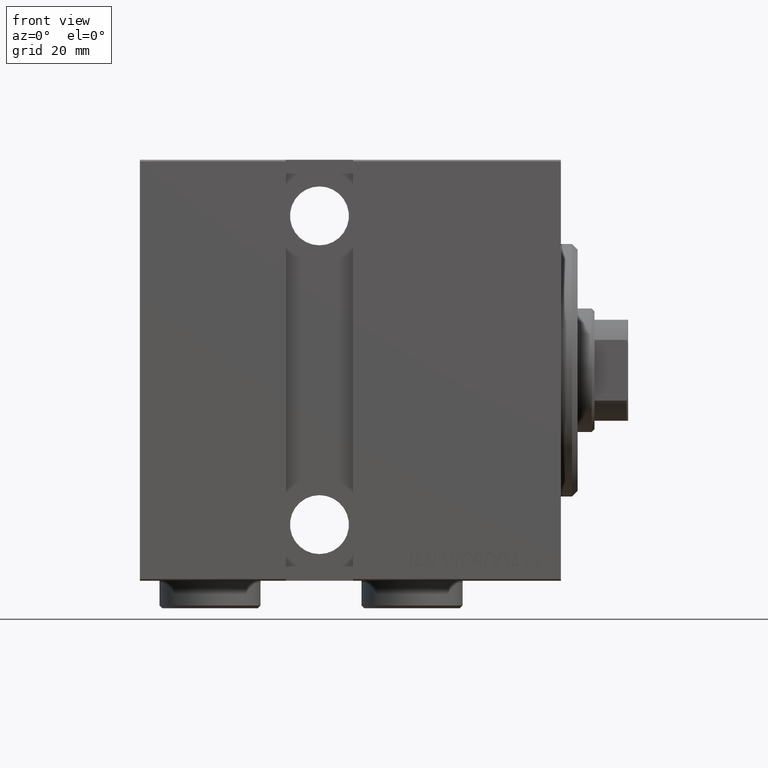
[diagram: clean part render]
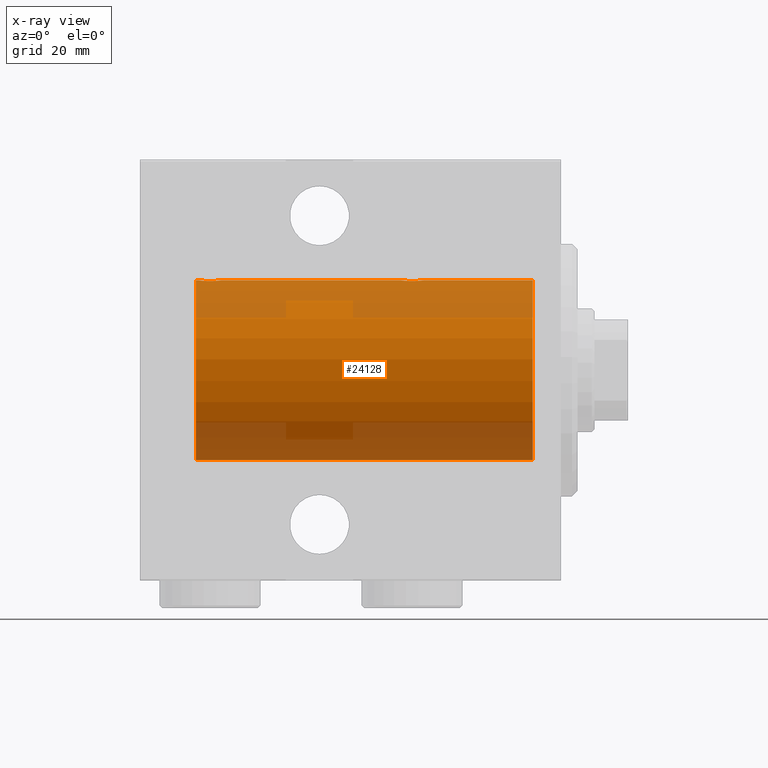
[diagram: x-ray — body ghosted, one internal face saturated and labeled with its STEP entity id]
A machine part, front view, then the same camera in x-ray: the body is ghosted and one INTERNAL B-rep face — a face not visible from any outside direction — is saturated and labeled: STEP entity #24128.
In plain terms, the highlighted cylindrical surface (partial cylindrical patch) has radius 16 mm, axis along (1, 0, -0).
Its self-contained STEP definition (entity closure, byte-faithful):
#382 = DIRECTION ( 'NONE',  ( -1.000000000000000000, -0.000000000000000000, -0.000000000000000000 ) ) ;
#606 = LINE ( 'NONE', #40849, #21397 ) ;
#1157 = CARTESIAN_POINT ( 'NONE',  ( 25.98086902289887234, 1.935876924222074358, 15.88247600692093187 ) ) ;
#1593 = CARTESIAN_POINT ( 'NONE',  ( 27.50659181559580446, 1.747750603376297729, 15.90457341008072056 ) ) ;
#1829 = CARTESIAN_POINT ( 'NONE',  ( 61.85613031966985886, 1.898058445420874651, 15.88709929148890687 ) ) ;
#2051 = CARTESIAN_POINT ( 'NONE',  ( 64.49999999999998579, 3.415560487804343463E-15, 16.00000000000000000 ) ) ;
#2203 = ORIENTED_EDGE ( 'NONE', *, *, #26981, .T. ) ;
#3200 = FACE_OUTER_BOUND ( 'NONE', #31350, .T. ) ;
#3416 = CYLINDRICAL_SURFACE ( 'NONE', #31653, 16.00000000000000000 ) ;
#4492 = CARTESIAN_POINT ( 'NONE',  ( 28.49999999999999645, -1.207828523974853969E-15, 16.00000000000000000 ) ) ;
#4604 = EDGE_CURVE ( 'NONE', #28850, #25302, #606, .T. ) ;
#4939 = CARTESIAN_POINT ( 'NONE',  ( 64.29713414748218270, 0.8874076679346717400, 15.97583181162460697 ) ) ;
#5162 = CARTESIAN_POINT ( 'NONE',  ( 64.00610712468245822, 1.322357532253809476, 15.94553003295877680 ) ) ;
#5378 = CARTESIAN_POINT ( 'NONE',  ( 60.51309075167873885, 0.2632563459770802528, 15.99834873924246104 ) ) ;
#5596 = CARTESIAN_POINT ( 'NONE',  ( 62.37014691649500264, 2.000047931387129552, 15.87450182760079898 ) ) ;
#5641 = B_SPLINE_CURVE_WITH_KNOTS ( 'NONE', 3,
 ( #4492, #42709, #11383, #32285, #18294, #12276, #38284, #8709, #25173, #18072, #1593, #38507, #15386, #31621, #8267, #1157, #21842, #28719, #28941, #42268, #11829, #38947, #8485, #22057, #39596, #39379, #36708, #23153, #36913, #12927 ),
 .UNSPECIFIED., .F., .F.,
 ( 4, 2, 2, 2, 2, 2, 2, 2, 2, 2, 2, 2, 2, 2, 4 ),
 ( 1.745049934674283425E-18, 0.0003911894522871204737, 0.0007823789045742392126, 0.001173568356861357789, 0.001564757809148476691, 0.002347136713722706037, 0.003129515618296936034, 0.003520705070584051466, 0.003911894522871166464, 0.004303083975158282330, 0.004694273427445396461, 0.005085462879732512327, 0.005476652332019627326, 0.005867841784306743191, 0.006259031236593858190 ),
 .UNSPECIFIED. ) ;
#5719 = DIRECTION ( 'NONE',  ( -1.000000000000000000, 0.000000000000000000, 0.000000000000000000 ) ) ;
#5853 = CARTESIAN_POINT ( 'NONE',  ( 65.00000000000000000, 0.000000000000000000, 16.00000000000000000 ) ) ;
#6196 = VERTEX_POINT ( 'NONE', #9571 ) ;
#8233 = EDGE_CURVE ( 'NONE', #14792, #35849, #35295, .T. ) ;
#8267 = CARTESIAN_POINT ( 'NONE',  ( 26.23748416992101085, 1.987008272775788731, 15.87616016863256618 ) ) ;
#8485 = CARTESIAN_POINT ( 'NONE',  ( 24.90998471899876066, 1.220169175415113827, 15.95377581882983442 ) ) ;
#8593 = ORIENTED_EDGE ( 'NONE', *, *, #14199, .T. ) ;
#8709 = CARTESIAN_POINT ( 'NONE',  ( 28.09051504852099512, 1.219564485341767091, 15.95382484008323409 ) ) ;
#8728 = CARTESIAN_POINT ( 'NONE',  ( 60.56430947073870641, 0.5198215460038694280, 15.99206840425679310 ) ) ;
#9118 = DIRECTION ( 'NONE',  ( -1.000000000000000000, -0.000000000000000000, -0.000000000000000000 ) ) ;
#9571 = CARTESIAN_POINT ( 'NONE',  ( 64.49999999999998579, 3.415560487804343463E-15, 16.00000000000000000 ) ) ;
#11241 = CARTESIAN_POINT ( 'NONE',  ( 4.999999999999997335, 0.000000000000000000, 16.00000000000000000 ) ) ;
#11383 = CARTESIAN_POINT ( 'NONE',  ( 28.48700524008413382, 0.2623312429553315561, 15.99836091803360105 ) ) ;
#11550 = EDGE_CURVE ( 'NONE', #22007, #28850, #30180, .T. ) ;
#11829 = CARTESIAN_POINT ( 'NONE',  ( 25.17924175171067702, 1.507649250492130388, 15.92908549642226745 ) ) ;
#12064 = CARTESIAN_POINT ( 'NONE',  ( 60.76517329325045580, 1.003662148334357296, 15.96885838080210362 ) ) ;
#12276 = CARTESIAN_POINT ( 'NONE',  ( 28.29713414748220046, 0.8874076679346754037, 15.97583181162460697 ) ) ;
#12293 = CARTESIAN_POINT ( 'NONE',  ( 60.50000000000000711, -2.739595594696790848E-23, 16.00000000000000000 ) ) ;
#12508 = CARTESIAN_POINT ( 'NONE',  ( 61.28032342557722245, 1.590393755195991909, 15.92092783521423272 ) ) ;
#12927 = CARTESIAN_POINT ( 'NONE',  ( 24.50000000000000000, -2.739635037742051899E-23, 16.00000000000000000 ) ) ;
#13667 = CARTESIAN_POINT ( 'NONE',  ( 65.00000000000000000, 0.000000000000000000, 0.000000000000000000 ) ) ;
#13682 = VERTEX_POINT ( 'NONE', #35434 ) ;
#13903 = EDGE_CURVE ( 'NONE', #30354, #13682, #22689, .T. ) ;
#14199 = EDGE_CURVE ( 'NONE', #35849, #25302, #30829, .T. ) ;
#14792 = VERTEX_POINT ( 'NONE', #24074 ) ;
#15140 = CARTESIAN_POINT ( 'NONE',  ( 65.00000000000000000, 0.000000000000000000, 16.00000000000000000 ) ) ;
#15189 = CARTESIAN_POINT ( 'NONE',  ( 64.43611326682059826, 0.5181437283162059204, 15.99211983514074653 ) ) ;
#15386 = CARTESIAN_POINT ( 'NONE',  ( 26.76191462762254858, 1.999903730784154066, 15.87451999516785861 ) ) ;
#15505 = CARTESIAN_POINT ( 'NONE',  ( 65.00000000000000000, 0.000000000000000000, 16.00000000000000000 ) ) ;
#15616 = CARTESIAN_POINT ( 'NONE',  ( 63.50659181559576183, 1.747750603376297951, 15.90457341008072056 ) ) ;
#15923 = AXIS2_PLACEMENT_3D ( 'NONE', #42267, #18728, #29595 ) ;
#15975 = AXIS2_PLACEMENT_3D ( 'NONE', #21966, #5719, #18864 ) ;
#16753 = CARTESIAN_POINT ( 'NONE',  ( 4.999999999999997335, 1.959434878635765131E-15, -16.00000000000000000 ) ) ;
#16999 = DIRECTION ( 'NONE',  ( 0.000000000000000000, 0.000000000000000000, 1.000000000000000000 ) ) ;
#18072 = CARTESIAN_POINT ( 'NONE',  ( 27.72956111739783580, 1.598790766515148620, 15.92099550861380131 ) ) ;
#18294 = CARTESIAN_POINT ( 'NONE',  ( 28.39758870055591444, 0.6452446332038146437, 15.98744362947834574 ) ) ;
#18528 = CARTESIAN_POINT ( 'NONE',  ( 60.99262839687573745, 1.321075116345875378, 15.94564302722883653 ) ) ;
#18728 = DIRECTION ( 'NONE',  ( -1.000000000000000000, 0.000000000000000000, 0.000000000000000000 ) ) ;
#18748 = CARTESIAN_POINT ( 'NONE',  ( 62.76191462762252371, 1.999903730784143630, 15.87451999516785506 ) ) ;
#18864 = DIRECTION ( 'NONE',  ( 0.000000000000000000, 0.000000000000000000, 1.000000000000000000 ) ) ;
#18963 = CARTESIAN_POINT ( 'NONE',  ( 61.61382242942730159, 1.797743958659246966, 15.89876304682111652 ) ) ;
#19658 = ORIENTED_EDGE ( 'NONE', *, *, #4604, .F. ) ;
#20322 = ORIENTED_EDGE ( 'NONE', *, *, #30399, .T. ) ;
#21397 = VECTOR ( 'NONE', #382, 1000.000000000000000 ) ;
#21842 = CARTESIAN_POINT ( 'NONE',  ( 25.85613031966986952, 1.898058445420883311, 15.88709929148890510 ) ) ;
#21966 = CARTESIAN_POINT ( 'NONE',  ( 65.00000000000000000, 0.000000000000000000, 0.000000000000000000 ) ) ;
#22007 = VERTEX_POINT ( 'NONE', #5853 ) ;
#22057 = CARTESIAN_POINT ( 'NONE',  ( 24.76517329325045225, 1.003662148334361959, 15.96885838080210007 ) ) ;
#22076 = CARTESIAN_POINT ( 'NONE',  ( 63.02531756459401890, 1.947280337074155376, 15.88137861827787489 ) ) ;
#22298 = CARTESIAN_POINT ( 'NONE',  ( 60.50000000000001421, 0.1305944228192293111, 16.00000000000000000 ) ) ;
#22689 = LINE ( 'NONE', #15140, #25823 ) ;
#23153 = CARTESIAN_POINT ( 'NONE',  ( 24.51309075167874596, 0.2632563459770819736, 15.99834873924246459 ) ) ;
#24074 = CARTESIAN_POINT ( 'NONE',  ( 24.50000000000000000, -2.739635037742051899E-23, 16.00000000000000000 ) ) ;
#24128 = ADVANCED_FACE ( 'NONE', ( #3200 ), #3416, .F. ) ;
#25173 = CARTESIAN_POINT ( 'NONE',  ( 28.00610712468246177, 1.322357532253821910, 15.94553003295878391 ) ) ;
#25302 = VERTEX_POINT ( 'NONE', #16753 ) ;
#25414 = CARTESIAN_POINT ( 'NONE',  ( 60.90998471899877131, 1.220169175415108942, 15.95377581882983797 ) ) ;
#25511 = DIRECTION ( 'NONE',  ( -1.000000000000000000, -0.000000000000000000, -0.000000000000000000 ) ) ;
#25628 = CARTESIAN_POINT ( 'NONE',  ( 61.17924175171067702, 1.507649250492122839, 15.92908549642226745 ) ) ;
#25823 = VECTOR ( 'NONE', #9118, 1000.000000000000000 ) ;
#25849 = CARTESIAN_POINT ( 'NONE',  ( 60.70250071394959690, 0.8866640484200044581, 15.97587307151817804 ) ) ;
#26131 = DIRECTION ( 'NONE',  ( -1.000000000000000000, -0.000000000000000000, -0.000000000000000000 ) ) ;
#26494 = ORIENTED_EDGE ( 'NONE', *, *, #8233, .T. ) ;
#26772 = LINE ( 'NONE', #42790, #43090 ) ;
#26981 = EDGE_CURVE ( 'NONE', #22007, #6196, #26772, .T. ) ;
#28048 = B_SPLINE_CURVE_WITH_KNOTS ( 'NONE', 3,
 ( #2051, #42727, #36072, #15189, #42285, #4939, #28959, #29397, #5162, #39182, #15616, #22076, #18748, #5596, #42502, #28736, #1829, #18963, #39398, #12508, #25628, #18528, #25414, #12064, #25849, #32303, #8728, #5378, #22298, #12293 ),
 .UNSPECIFIED., .F., .F.,
 ( 4, 2, 2, 2, 2, 2, 2, 2, 2, 2, 2, 2, 2, 2, 4 ),
 ( 3.318791181215196379E-18, 0.0003911894522871183053, 0.0007823789045742333579, 0.001173568356861347814, 0.001564757809148462596, 0.002347136713722691292, 0.003129515618296919988, 0.003520705070584034552, 0.003911894522871149117, 0.004303083975158263248, 0.004694273427445377379, 0.005085462879732491510, 0.005476652332019605642, 0.005867841784306719773, 0.006259031236593833904 ),
 .UNSPECIFIED. ) ;
#28719 = CARTESIAN_POINT ( 'NONE',  ( 25.61382242942729803, 1.797743958659254515, 15.89876304682112007 ) ) ;
#28736 = CARTESIAN_POINT ( 'NONE',  ( 61.98086902289887945, 1.935876924222067252, 15.88247600692093187 ) ) ;
#28850 = VERTEX_POINT ( 'NONE', #30738 ) ;
#28941 = CARTESIAN_POINT ( 'NONE',  ( 25.49688752964961225, 1.735145127817741439, 15.90580292899658410 ) ) ;
#28959 = CARTESIAN_POINT ( 'NONE',  ( 64.23568098498259360, 1.002241074716276881, 15.96895041604535770 ) ) ;
#29397 = CARTESIAN_POINT ( 'NONE',  ( 64.09051504852095604, 1.219564485341761317, 15.95382484008322344 ) ) ;
#29595 = DIRECTION ( 'NONE',  ( 0.000000000000000000, 0.000000000000000000, 1.000000000000000000 ) ) ;
#30180 = CIRCLE ( 'NONE', #15975, 16.00000000000000000 ) ;
#30354 = VERTEX_POINT ( 'NONE', #41421 ) ;
#30399 = EDGE_CURVE ( 'NONE', #6196, #30354, #28048, .T. ) ;
#30738 = CARTESIAN_POINT ( 'NONE',  ( 65.00000000000000000, 1.959434878635765131E-15, -16.00000000000000000 ) ) ;
#30829 = CIRCLE ( 'NONE', #15923, 16.00000000000000000 ) ;
#31350 = EDGE_LOOP ( 'NONE', ( #19658, #41728, #2203, #20322, #34203, #32786, #26494, #8593 ) ) ;
#31621 = CARTESIAN_POINT ( 'NONE',  ( 26.37014691649501685, 2.000047931387139322, 15.87450182760079187 ) ) ;
#31653 = AXIS2_PLACEMENT_3D ( 'NONE', #13667, #37441, #16999 ) ;
#32285 = CARTESIAN_POINT ( 'NONE',  ( 28.43611326682063378, 0.5181437283162068086, 15.99211983514074298 ) ) ;
#32303 = CARTESIAN_POINT ( 'NONE',  ( 60.60216273501104212, 0.6445079780200505537, 15.98747331501412461 ) ) ;
#32786 = ORIENTED_EDGE ( 'NONE', *, *, #41548, .T. ) ;
#34203 = ORIENTED_EDGE ( 'NONE', *, *, #13903, .T. ) ;
#34277 = VECTOR ( 'NONE', #25511, 1000.000000000000000 ) ;
#35295 = LINE ( 'NONE', #15505, #34277 ) ;
#35434 = CARTESIAN_POINT ( 'NONE',  ( 28.49999999999999645, -1.207828523974853969E-15, 16.00000000000000000 ) ) ;
#35849 = VERTEX_POINT ( 'NONE', #11241 ) ;
#36072 = CARTESIAN_POINT ( 'NONE',  ( 64.48700524008410184, 0.2623312429553320002, 15.99836091803360105 ) ) ;
#36708 = CARTESIAN_POINT ( 'NONE',  ( 24.56430947073869930, 0.5198215460038717595, 15.99206840425678955 ) ) ;
#36913 = CARTESIAN_POINT ( 'NONE',  ( 24.49999999999999289, 0.1305944228192297274, 15.99999999999999645 ) ) ;
#37441 = DIRECTION ( 'NONE',  ( -1.000000000000000000, -0.000000000000000000, -0.000000000000000000 ) ) ;
#38284 = CARTESIAN_POINT ( 'NONE',  ( 28.23568098498261492, 1.002241074716280655, 15.96895041604536480 ) ) ;
#38507 = CARTESIAN_POINT ( 'NONE',  ( 27.02531756459403667, 1.947280337074160927, 15.88137861827786779 ) ) ;
#38947 = CARTESIAN_POINT ( 'NONE',  ( 24.99262839687570903, 1.321075116345881595, 15.94564302722883298 ) ) ;
#39182 = CARTESIAN_POINT ( 'NONE',  ( 63.72956111739784291, 1.598790766515136408, 15.92099550861381019 ) ) ;
#39379 = CARTESIAN_POINT ( 'NONE',  ( 24.60216273501104567, 0.6445079780200539954, 15.98747331501412461 ) ) ;
#39398 = CARTESIAN_POINT ( 'NONE',  ( 61.49688752964961935, 1.735145127817733002, 15.90580292899658410 ) ) ;
#39596 = CARTESIAN_POINT ( 'NONE',  ( 24.70250071394960045, 0.8866640484200088990, 15.97587307151817448 ) ) ;
#40849 = CARTESIAN_POINT ( 'NONE',  ( 65.00000000000000000, 1.959434878635765131E-15, -16.00000000000000000 ) ) ;
#41421 = CARTESIAN_POINT ( 'NONE',  ( 60.50000000000000711, -2.739595594696790848E-23, 16.00000000000000000 ) ) ;
#41548 = EDGE_CURVE ( 'NONE', #13682, #14792, #5641, .T. ) ;
#41728 = ORIENTED_EDGE ( 'NONE', *, *, #11550, .F. ) ;
#42267 = CARTESIAN_POINT ( 'NONE',  ( 4.999999999999997335, 0.000000000000000000, 0.000000000000000000 ) ) ;
#42268 = CARTESIAN_POINT ( 'NONE',  ( 25.28032342557723311, 1.590393755196000347, 15.92092783521424337 ) ) ;
#42285 = CARTESIAN_POINT ( 'NONE',  ( 64.39758870055591444, 0.6452446332038123122, 15.98744362947834574 ) ) ;
#42502 = CARTESIAN_POINT ( 'NONE',  ( 62.23748416992101085, 1.987008272775779627, 15.87616016863256618 ) ) ;
#42709 = CARTESIAN_POINT ( 'NONE',  ( 28.49999999999998579, 0.1322838750249257511, 16.00000000000000000 ) ) ;
#42727 = CARTESIAN_POINT ( 'NONE',  ( 64.49999999999997158, 0.1322838750249256956, 16.00000000000000000 ) ) ;
#42790 = CARTESIAN_POINT ( 'NONE',  ( 65.00000000000000000, 0.000000000000000000, 16.00000000000000000 ) ) ;
#43090 = VECTOR ( 'NONE', #26131, 1000.000000000000000 ) ;